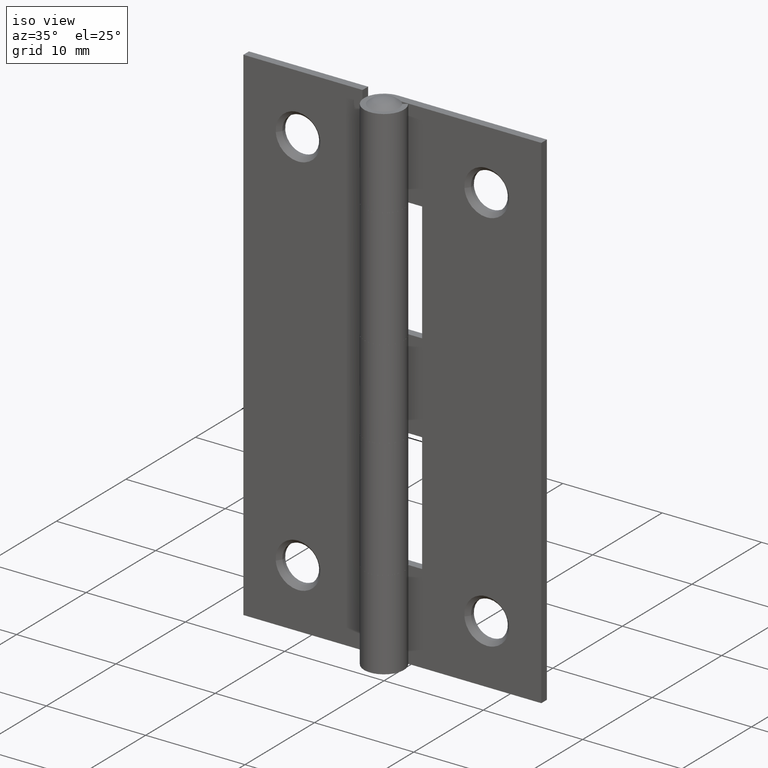
[diagram: clean part render]
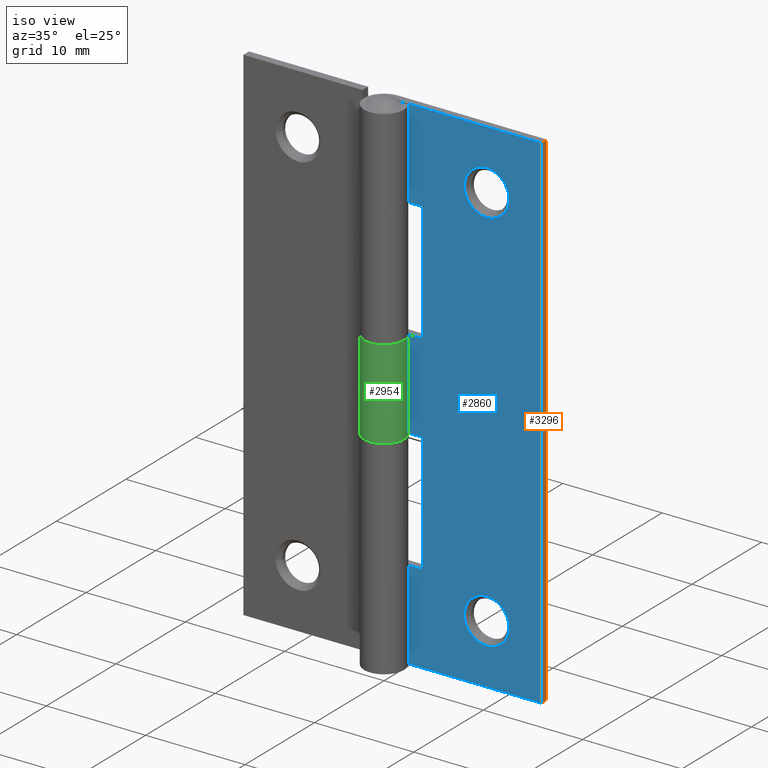
[diagram: same view with three faces highlighted in distinct colors, each labeled with its STEP entity id]
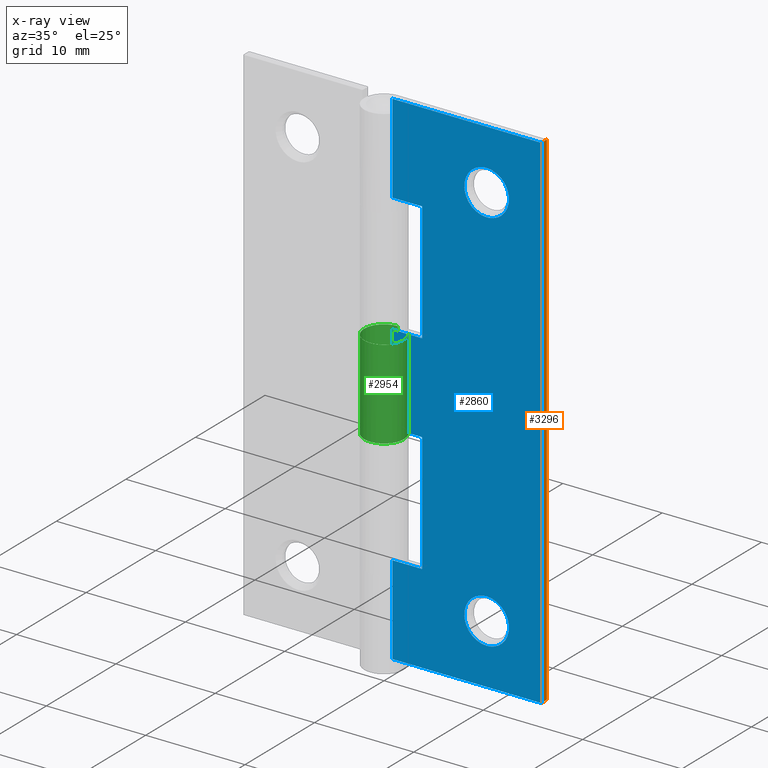
[diagram: x-ray of the same camera — body ghosted, the three highlighted faces saturated]
A machine part, iso view with three faces highlighted in distinct colors.
The next image is the same camera in x-ray (body ghosted, the three faces saturated) — at least one of them is partly hidden behind the body in this view.
Their STEP definitions:

[orange] entity #3296 — the highlighted face is a freeform B-spline surface patch.
#2827=CARTESIAN_POINT('',(14.999999999988461,1.200000000000000,-9.547918E-012));
#2828=VERTEX_POINT('',#2827);
#2834=CARTESIAN_POINT('',(14.999999999988461,1.200000000000000,50.999999999990401));
#2835=VERTEX_POINT('',#2834);
#2836=CARTESIAN_POINT('',(14.999999999988461,1.200000000000000,50.999999999990401));
#2837=CARTESIAN_POINT('',(14.999999999988461,1.200000000000000,-9.547918E-012));
#2838=QUASI_UNIFORM_CURVE('',1,(#2836,#2837),.UNSPECIFIED.,.F.,.U.);
#2839=EDGE_CURVE('',#2835,#2828,#2838,.T.);
#3196=CARTESIAN_POINT('',(14.999999999988461,1.999999999982665,-9.547918E-012));
#3197=VERTEX_POINT('',#3196);
#3203=CARTESIAN_POINT('',(14.999999999988461,1.999999999982665,-9.547918E-012));
#3204=CARTESIAN_POINT('',(14.999999999988461,1.200000000000000,-9.547918E-012));
#3205=QUASI_UNIFORM_CURVE('',1,(#3203,#3204),.UNSPECIFIED.,.F.,.U.);
#3206=EDGE_CURVE('',#3197,#2828,#3205,.T.);
#3266=CARTESIAN_POINT('',(14.999999999988461,1.999999999982665,50.999999999990401));
#3267=VERTEX_POINT('',#3266);
#3268=CARTESIAN_POINT('',(14.999999999988461,1.999999999982665,50.999999999990401));
#3269=CARTESIAN_POINT('',(14.999999999988461,1.200000000000000,50.999999999990401));
#3270=QUASI_UNIFORM_CURVE('',1,(#3268,#3269),.UNSPECIFIED.,.F.,.U.);
#3271=EDGE_CURVE('',#3267,#2835,#3270,.T.);
#3281=CARTESIAN_POINT('',(14.999999999988461,1.160040001551421,53.547449901142507));
#3282=CARTESIAN_POINT('',(14.999999999988461,1.160040001551421,-2.547451269088248));
#3283=CARTESIAN_POINT('',(14.999999999988461,2.039960019888916,53.547449901142507));
#3284=CARTESIAN_POINT('',(14.999999999988461,2.039960019888916,-2.547451269088248));
#3285=B_SPLINE_SURFACE_WITH_KNOTS('',1,1,((#3281,#3283),(#3282,#3284)),.UNSPECIFIED.,.F.,.F.,.U.,(2,2),(2,2),(0.0,56.094901170230763),(0.041708334948495,0.958291687403247),.UNSPECIFIED.);
#3286=ORIENTED_EDGE('',*,*,#3206,.F.);
#3287=CARTESIAN_POINT('',(14.999999999988461,1.999999999982665,50.999999999990401));
#3288=CARTESIAN_POINT('',(14.999999999988461,1.999999999982665,-9.547918E-012));
#3289=QUASI_UNIFORM_CURVE('',1,(#3287,#3288),.UNSPECIFIED.,.F.,.U.);
#3290=EDGE_CURVE('',#3267,#3197,#3289,.T.);
#3291=ORIENTED_EDGE('',*,*,#3290,.F.);
#3292=ORIENTED_EDGE('',*,*,#3271,.T.);
#3293=ORIENTED_EDGE('',*,*,#2839,.T.);
#3294=EDGE_LOOP('',(#3286,#3291,#3292,#3293));
#3295=FACE_OUTER_BOUND('',#3294,.T.);
#3296=ADVANCED_FACE('',(#3295),#3285,.T.);

[blue] entity #2860 — the highlighted face is a freeform B-spline surface patch.
#1819=CARTESIAN_POINT('',(11.743064000920100,1.199999999947881,45.176532965684039));
#1820=VERTEX_POINT('',#1819);
#1826=CARTESIAN_POINT('',(9.499999999988402,1.199999999999976,47.249999999904837));
#1827=VERTEX_POINT('',#1826);
#1828=CARTESIAN_POINT('',(9.499999999988402,1.199999999999976,47.249999999904837));
#1829=CARTESIAN_POINT('',(11.579878605885737,1.199999999973929,47.249999999906919));
#1830=CARTESIAN_POINT('',(11.743064000920102,1.199999999947882,45.176532965684039));
#1838=(BOUNDED_CURVE()B_SPLINE_CURVE(2,(#1828,#1829,#1830),.UNSPECIFIED.,.F.,.U.)B_SPLINE_CURVE_WITH_KNOTS((3,3),(0.0,0.236331300602339),.UNSPECIFIED.)CURVE()GEOMETRIC_REPRESENTATION_ITEM()RATIONAL_B_SPLINE_CURVE((1.0,0.723120658640845,0.969723356108315))REPRESENTATION_ITEM(''));
#1839=EDGE_CURVE('',#1827,#1820,#1838,.T.);
#1841=CARTESIAN_POINT('',(7.256935999056699,1.199999999947881,44.823467034102457));
#1842=VERTEX_POINT('',#1841);
#1843=CARTESIAN_POINT('',(7.256935999056699,1.199999999947881,44.823467034102464));
#1844=CARTESIAN_POINT('',(7.249999999925810,1.199999999948828,44.911597258921532));
#1845=CARTESIAN_POINT('',(7.249999999926830,1.199999999949851,44.999999999889312));
#1846=CARTESIAN_POINT('',(7.249999999952800,1.199999999975898,47.249999999902961));
#1847=CARTESIAN_POINT('',(9.499999999988402,1.199999999999976,47.249999999904837));
#1855=(BOUNDED_CURVE()B_SPLINE_CURVE(2,(#1843,#1844,#1845,#1846,#1847),.UNSPECIFIED.,.F.,.U.)B_SPLINE_CURVE_WITH_KNOTS((3,2,3),(0.736331300602339,0.750000000000000,1.0),.UNSPECIFIED.)CURVE()GEOMETRIC_REPRESENTATION_ITEM()RATIONAL_B_SPLINE_CURVE((0.969723356108315,0.983986122545702,1.0,0.707106781186547,1.0))REPRESENTATION_ITEM(''));
#1856=EDGE_CURVE('',#1842,#1827,#1855,.T.);
#1962=CARTESIAN_POINT('',(9.499999999988402,1.199999999999976,42.749999999881652));
#1963=VERTEX_POINT('',#1962);
#1964=CARTESIAN_POINT('',(9.499999999988402,1.199999999999976,42.749999999881652));
#1965=CARTESIAN_POINT('',(7.420121394091065,1.199999999973928,42.749999999879606));
#1966=CARTESIAN_POINT('',(7.256935999056699,1.199999999947881,44.823467034102464));
#1974=(BOUNDED_CURVE()B_SPLINE_CURVE(2,(#1964,#1965,#1966),.UNSPECIFIED.,.F.,.U.)B_SPLINE_CURVE_WITH_KNOTS((3,3),(0.500000000000000,0.736331300602339),.UNSPECIFIED.)CURVE()GEOMETRIC_REPRESENTATION_ITEM()RATIONAL_B_SPLINE_CURVE((1.0,0.723120658640845,0.969723356108315))REPRESENTATION_ITEM(''));
#1975=EDGE_CURVE('',#1963,#1842,#1974,.T.);
#1977=CARTESIAN_POINT('',(11.743064000920103,1.199999999947882,45.176532965684039));
#1978=CARTESIAN_POINT('',(11.750000000050987,1.199999999948827,45.088402740864971));
#1979=CARTESIAN_POINT('',(11.750000000049971,1.199999999949851,44.999999999897177));
#1980=CARTESIAN_POINT('',(11.750000000024002,1.199999999975898,42.749999999883549));
#1981=CARTESIAN_POINT('',(9.499999999988402,1.199999999999976,42.749999999881652));
#1989=(BOUNDED_CURVE()B_SPLINE_CURVE(2,(#1977,#1978,#1979,#1980,#1981),.UNSPECIFIED.,.F.,.U.)B_SPLINE_CURVE_WITH_KNOTS((3,2,3),(0.236331300602340,0.250000000000000,0.500000000000000),.UNSPECIFIED.)CURVE()GEOMETRIC_REPRESENTATION_ITEM()RATIONAL_B_SPLINE_CURVE((0.969723356108316,0.983986122545703,1.0,0.707106781186547,1.0))REPRESENTATION_ITEM(''));
#1990=EDGE_CURVE('',#1820,#1963,#1989,.T.);
#2155=CARTESIAN_POINT('',(11.743064000920100,1.199999999947882,6.176532965684070));
#2156=VERTEX_POINT('',#2155);
#2162=CARTESIAN_POINT('',(9.499999999988402,1.199999999999976,8.249999999904874));
#2163=VERTEX_POINT('',#2162);
#2164=CARTESIAN_POINT('',(9.499999999988402,1.199999999999976,8.249999999904874));
#2165=CARTESIAN_POINT('',(11.579878605885739,1.199999999973929,8.249999999906917));
#2166=CARTESIAN_POINT('',(11.743064000920109,1.199999999947881,6.176532965684070));
#2174=(BOUNDED_CURVE()B_SPLINE_CURVE(2,(#2164,#2165,#2166),.UNSPECIFIED.,.F.,.U.)B_SPLINE_CURVE_WITH_KNOTS((3,3),(0.0,0.236331300602339),.UNSPECIFIED.)CURVE()GEOMETRIC_REPRESENTATION_ITEM()RATIONAL_B_SPLINE_CURVE((1.0,0.723120658640845,0.969723356108315))REPRESENTATION_ITEM(''));
#2175=EDGE_CURVE('',#2163,#2156,#2174,.T.);
#2177=CARTESIAN_POINT('',(7.256935999056699,1.199999999947881,5.823467034102490));
#2178=VERTEX_POINT('',#2177);
#2179=CARTESIAN_POINT('',(7.256935999056699,1.199999999947882,5.823467034102490));
#2180=CARTESIAN_POINT('',(7.249999999925810,1.199999999948828,5.911597258921560));
#2181=CARTESIAN_POINT('',(7.249999999926831,1.199999999949851,5.999999999889346));
#2182=CARTESIAN_POINT('',(7.249999999952800,1.199999999975898,8.249999999902986));
#2183=CARTESIAN_POINT('',(9.499999999988402,1.199999999999976,8.249999999904874));
#2191=(BOUNDED_CURVE()B_SPLINE_CURVE(2,(#2179,#2180,#2181,#2182,#2183),.UNSPECIFIED.,.F.,.U.)B_SPLINE_CURVE_WITH_KNOTS((3,2,3),(0.736331300602339,0.750000000000000,1.0),.UNSPECIFIED.)CURVE()GEOMETRIC_REPRESENTATION_ITEM()RATIONAL_B_SPLINE_CURVE((0.969723356108315,0.983986122545703,1.0,0.707106781186547,1.0))REPRESENTATION_ITEM(''));
#2192=EDGE_CURVE('',#2178,#2163,#2191,.T.);
#2298=CARTESIAN_POINT('',(9.499999999988402,1.199999999999976,3.749999999881685));
#2299=VERTEX_POINT('',#2298);
#2300=CARTESIAN_POINT('',(9.499999999988402,1.199999999999976,3.749999999881685));
#2301=CARTESIAN_POINT('',(7.420121394091066,1.199999999973929,3.749999999879642));
#2302=CARTESIAN_POINT('',(7.256935999056699,1.199999999947882,5.823467034102490));
#2310=(BOUNDED_CURVE()B_SPLINE_CURVE(2,(#2300,#2301,#2302),.UNSPECIFIED.,.F.,.U.)B_SPLINE_CURVE_WITH_KNOTS((3,3),(0.500000000000000,0.736331300602339),.UNSPECIFIED.)CURVE()GEOMETRIC_REPRESENTATION_ITEM()RATIONAL_B_SPLINE_CURVE((1.0,0.723120658640845,0.969723356108315))REPRESENTATION_ITEM(''));
#2311=EDGE_CURVE('',#2299,#2178,#2310,.T.);
#2313=CARTESIAN_POINT('',(11.743064000920109,1.199999999947881,6.176532965684070));
#2314=CARTESIAN_POINT('',(11.750000000050992,1.199999999948827,6.088402740865000));
#2315=CARTESIAN_POINT('',(11.750000000049971,1.199999999949851,5.999999999897213));
#2316=CARTESIAN_POINT('',(11.750000000024002,1.199999999975898,3.749999999883575));
#2317=CARTESIAN_POINT('',(9.499999999988402,1.199999999999976,3.749999999881685));
#2325=(BOUNDED_CURVE()B_SPLINE_CURVE(2,(#2313,#2314,#2315,#2316,#2317),.UNSPECIFIED.,.F.,.U.)B_SPLINE_CURVE_WITH_KNOTS((3,2,3),(0.236331300602339,0.250000000000000,0.500000000000000),.UNSPECIFIED.)CURVE()GEOMETRIC_REPRESENTATION_ITEM()RATIONAL_B_SPLINE_CURVE((0.969723356108315,0.983986122545703,1.0,0.707106781186547,1.0))REPRESENTATION_ITEM(''));
#2326=EDGE_CURVE('',#2156,#2299,#2325,.T.);
#2480=CARTESIAN_POINT('',(-1.159961E-011,1.200000000000000,9.000000000000119));
#2481=VERTEX_POINT('',#2480);
#2518=CARTESIAN_POINT('',(-1.159961E-011,1.199999999999928,-9.547918E-012));
#2519=VERTEX_POINT('',#2518);
#2547=CARTESIAN_POINT('',(-1.159961E-011,1.200000000000000,9.000000000000119));
#2548=CARTESIAN_POINT('',(-1.159961E-011,1.199999999999928,-9.547918E-012));
#2549=QUASI_UNIFORM_CURVE('',1,(#2547,#2548),.UNSPECIFIED.,.F.,.U.);
#2550=EDGE_CURVE('',#2481,#2519,#2549,.T.);
#2613=CARTESIAN_POINT('',(-1.159961E-011,1.200000000000000,30.0));
#2614=VERTEX_POINT('',#2613);
#2644=CARTESIAN_POINT('',(-1.159961E-011,1.200000000000000,21.0));
#2645=VERTEX_POINT('',#2644);
#2675=CARTESIAN_POINT('',(-1.159961E-011,1.200000000000000,30.0));
#2676=CARTESIAN_POINT('',(-1.159961E-011,1.200000000000000,21.0));
#2677=QUASI_UNIFORM_CURVE('',1,(#2675,#2676),.UNSPECIFIED.,.F.,.U.);
#2678=EDGE_CURVE('',#2614,#2645,#2677,.T.);
#2705=CARTESIAN_POINT('',(-1.159961E-011,1.200000000000000,42.0));
#2706=VERTEX_POINT('',#2705);
#2736=CARTESIAN_POINT('',(-1.159961E-011,1.199999999999928,50.999999999990401));
#2737=VERTEX_POINT('',#2736);
#2738=CARTESIAN_POINT('',(-1.159961E-011,1.199999999999928,50.999999999990401));
#2739=CARTESIAN_POINT('',(-1.159961E-011,1.200000000000000,42.0));
#2740=QUASI_UNIFORM_CURVE('',1,(#2738,#2739),.UNSPECIFIED.,.F.,.U.);
#2741=EDGE_CURVE('',#2737,#2706,#2740,.T.);
#2781=CARTESIAN_POINT('',(-0.749249970938691,1.200000000000000,-2.547449901161651));
#2782=CARTESIAN_POINT('',(15.749250373246911,1.200000000000000,-2.547449901161651));
#2783=CARTESIAN_POINT('',(-0.749249970938691,1.200000000000000,53.547451269069100));
#2784=CARTESIAN_POINT('',(15.749250373246911,1.200000000000000,53.547451269069100));
#2785=B_SPLINE_SURFACE_WITH_KNOTS('',1,1,((#2781,#2783),(#2782,#2784)),.UNSPECIFIED.,.F.,.F.,.U.,(2,2),(2,2),(0.0,16.498500344185601),(0.0,56.094901170230749),.UNSPECIFIED.);
#2786=ORIENTED_EDGE('',*,*,#2741,.T.);
#2787=CARTESIAN_POINT('',(3.000000000000055,1.199999999999980,41.999999999998103));
#2788=VERTEX_POINT('',#2787);
#2789=CARTESIAN_POINT('',(-1.159961E-011,1.200000000000000,42.0));
#2790=CARTESIAN_POINT('',(3.000000000000055,1.199999999999980,41.999999999998103));
#2791=QUASI_UNIFORM_CURVE('',1,(#2789,#2790),.UNSPECIFIED.,.F.,.U.);
#2792=EDGE_CURVE('',#2706,#2788,#2791,.T.);
#2793=ORIENTED_EDGE('',*,*,#2792,.T.);
#2794=CARTESIAN_POINT('',(3.000000000000055,1.199999999999980,29.999999999998149));
#2795=VERTEX_POINT('',#2794);
#2796=CARTESIAN_POINT('',(3.000000000000055,1.199999999999980,41.999999999998103));
#2797=CARTESIAN_POINT('',(3.000000000000055,1.199999999999980,29.999999999998149));
#2798=QUASI_UNIFORM_CURVE('',1,(#2796,#2797),.UNSPECIFIED.,.F.,.U.);
#2799=EDGE_CURVE('',#2788,#2795,#2798,.T.);
#2800=ORIENTED_EDGE('',*,*,#2799,.T.);
#2801=CARTESIAN_POINT('',(3.000000000000055,1.199999999999980,29.999999999998149));
#2802=CARTESIAN_POINT('',(-1.159961E-011,1.200000000000000,30.0));
#2803=QUASI_UNIFORM_CURVE('',1,(#2801,#2802),.UNSPECIFIED.,.F.,.U.);
#2804=EDGE_CURVE('',#2795,#2614,#2803,.T.);
#2805=ORIENTED_EDGE('',*,*,#2804,.T.);
#2806=ORIENTED_EDGE('',*,*,#2678,.T.);
#2807=CARTESIAN_POINT('',(3.0,1.199999999999980,20.999999999998149));
#2808=VERTEX_POINT('',#2807);
#2809=CARTESIAN_POINT('',(-1.159961E-011,1.200000000000000,21.0));
#2810=CARTESIAN_POINT('',(3.0,1.199999999999980,20.999999999998149));
#2811=QUASI_UNIFORM_CURVE('',1,(#2809,#2810),.UNSPECIFIED.,.F.,.U.);
#2812=EDGE_CURVE('',#2645,#2808,#2811,.T.);
#2813=ORIENTED_EDGE('',*,*,#2812,.T.);
#2814=CARTESIAN_POINT('',(3.0,1.199999999999980,8.999999999998121));
#2815=VERTEX_POINT('',#2814);
#2816=CARTESIAN_POINT('',(3.0,1.199999999999980,20.999999999998149));
#2817=CARTESIAN_POINT('',(3.0,1.199999999999980,8.999999999998121));
#2818=QUASI_UNIFORM_CURVE('',1,(#2816,#2817),.UNSPECIFIED.,.F.,.U.);
#2819=EDGE_CURVE('',#2808,#2815,#2818,.T.);
#2820=ORIENTED_EDGE('',*,*,#2819,.T.);
#2821=CARTESIAN_POINT('',(3.0,1.199999999999980,8.999999999998121));
#2822=CARTESIAN_POINT('',(-1.159961E-011,1.200000000000000,9.000000000000119));
#2823=QUASI_UNIFORM_CURVE('',1,(#2821,#2822),.UNSPECIFIED.,.F.,.U.);
#2824=EDGE_CURVE('',#2815,#2481,#2823,.T.);
#2825=ORIENTED_EDGE('',*,*,#2824,.T.);
#2826=ORIENTED_EDGE('',*,*,#2550,.T.);
#2827=CARTESIAN_POINT('',(14.999999999988461,1.200000000000000,-9.547918E-012));
#2828=VERTEX_POINT('',#2827);
#2829=CARTESIAN_POINT('',(14.999999999988461,1.200000000000000,-9.547918E-012));
#2830=CARTESIAN_POINT('',(-1.159961E-011,1.199999999999928,-9.547918E-012));
#2831=QUASI_UNIFORM_CURVE('',1,(#2829,#2830),.UNSPECIFIED.,.F.,.U.);
#2832=EDGE_CURVE('',#2828,#2519,#2831,.T.);
#2833=ORIENTED_EDGE('',*,*,#2832,.F.);
#2834=CARTESIAN_POINT('',(14.999999999988461,1.200000000000000,50.999999999990401));
#2835=VERTEX_POINT('',#2834);
#2836=CARTESIAN_POINT('',(14.999999999988461,1.200000000000000,50.999999999990401));
#2837=CARTESIAN_POINT('',(14.999999999988461,1.200000000000000,-9.547918E-012));
#2838=QUASI_UNIFORM_CURVE('',1,(#2836,#2837),.UNSPECIFIED.,.F.,.U.);
#2839=EDGE_CURVE('',#2835,#2828,#2838,.T.);
#2840=ORIENTED_EDGE('',*,*,#2839,.F.);
#2841=CARTESIAN_POINT('',(14.999999999988461,1.200000000000000,50.999999999990401));
#2842=CARTESIAN_POINT('',(-1.159961E-011,1.199999999999928,50.999999999990401));
#2843=QUASI_UNIFORM_CURVE('',1,(#2841,#2842),.UNSPECIFIED.,.F.,.U.);
#2844=EDGE_CURVE('',#2835,#2737,#2843,.T.);
#2845=ORIENTED_EDGE('',*,*,#2844,.T.);
#2846=EDGE_LOOP('',(#2786,#2793,#2800,#2805,#2806,#2813,#2820,#2825,#2826,#2833,#2840,#2845));
#2847=FACE_OUTER_BOUND('',#2846,.T.);
#2848=ORIENTED_EDGE('',*,*,#2311,.T.);
#2849=ORIENTED_EDGE('',*,*,#2192,.T.);
#2850=ORIENTED_EDGE('',*,*,#2175,.T.);
#2851=ORIENTED_EDGE('',*,*,#2326,.T.);
#2852=EDGE_LOOP('',(#2848,#2849,#2850,#2851));
#2853=FACE_BOUND('',#2852,.T.);
#2854=ORIENTED_EDGE('',*,*,#1975,.T.);
#2855=ORIENTED_EDGE('',*,*,#1856,.T.);
#2856=ORIENTED_EDGE('',*,*,#1839,.T.);
#2857=ORIENTED_EDGE('',*,*,#1990,.T.);
#2858=EDGE_LOOP('',(#2854,#2855,#2856,#2857));
#2859=FACE_BOUND('',#2858,.T.);
#2860=ADVANCED_FACE('',(#2847,#2853,#2859),#2785,.T.);

[green] entity #2954 — the highlighted face is a freeform B-spline surface patch.
#2569=CARTESIAN_POINT('',(1.636306817183805,1.149999999999934,29.999999999999250));
#2570=VERTEX_POINT('',#2569);
#2576=CARTESIAN_POINT('',(1.636306817183805,1.149999999999934,20.999999999999051));
#2577=VERTEX_POINT('',#2576);
#2578=CARTESIAN_POINT('',(1.636306817183805,1.149999999999934,29.999999999999250));
#2579=CARTESIAN_POINT('',(1.636306817183805,1.149999999999934,20.999999999999051));
#2580=QUASI_UNIFORM_CURVE('',1,(#2578,#2579),.UNSPECIFIED.,.F.,.U.);
#2581=EDGE_CURVE('',#2570,#2577,#2580,.T.);
#2861=CARTESIAN_POINT('',(0.083764134986120,1.998245122523281,30.225000000001351));
#2862=CARTESIAN_POINT('',(0.083764134986120,1.998245122523281,20.769374999998650));
#2863=CARTESIAN_POINT('',(-2.473872988658187,2.105458326191498,30.225000000001359));
#2864=CARTESIAN_POINT('',(-2.473872988658187,2.105458326191498,20.769374999998661));
#2865=CARTESIAN_POINT('',(-1.959153080769704,-0.402143265710133,30.225000000001351));
#2866=CARTESIAN_POINT('',(-1.959153080769704,-0.402143265710133,20.769374999998650));
#2867=CARTESIAN_POINT('',(-1.444433172881222,-2.909744857611765,30.225000000001359));
#2868=CARTESIAN_POINT('',(-1.444433172881222,-2.909744857611765,20.769374999998661));
#2869=CARTESIAN_POINT('',(0.864159919124549,-1.803670600236808,30.225000000001351));
#2870=CARTESIAN_POINT('',(0.864159919124549,-1.803670600236808,20.769374999998650));
#2871=CARTESIAN_POINT('',(3.172753011130319,-0.697596342861852,30.225000000001359));
#2872=CARTESIAN_POINT('',(3.172753011130319,-0.697596342861852,20.769374999998661));
#2873=CARTESIAN_POINT('',(1.541034669269169,1.274838087003491,30.225000000001351));
#2874=CARTESIAN_POINT('',(1.541034669269169,1.274838087003491,20.769374999998650));
#2882=(BOUNDED_SURFACE()B_SPLINE_SURFACE(1,2,((#2861,#2863,#2865,#2867,#2869,#2871,#2873),(#2862,#2864,#2866,#2868,#2870,#2872,#2874)),.UNSPECIFIED.,.F.,.F.,.U.)B_SPLINE_SURFACE_WITH_KNOTS((2,2),(3,2,2,3),(0.0,9.455625000002698),(0.0,3.901860708526890,7.803721417053780,11.705582125580669),.UNSPECIFIED.)GEOMETRIC_REPRESENTATION_ITEM()RATIONAL_B_SPLINE_SURFACE(((1.0,0.615661475325658,1.0,0.615661475325658,1.0,0.615661475325658,1.0),(1.0,0.615661475325658,1.0,0.615661475325658,1.0,0.615661475325658,1.0)))REPRESENTATION_ITEM('')SURFACE());
#2883=ORIENTED_EDGE('',*,*,#2581,.F.);
#2884=CARTESIAN_POINT('',(-9.285107E-012,1.999999999982680,30.0));
#2885=VERTEX_POINT('',#2884);
#2886=CARTESIAN_POINT('',(1.636306817183805,1.149999999999934,29.999999999999250));
#2887=CARTESIAN_POINT('',(1.748018753799967,0.991210770198378,29.999999999999169));
#2888=CARTESIAN_POINT('',(1.880371766056022,0.728366814812891,29.999999999998970));
#2889=CARTESIAN_POINT('',(1.982996333552182,0.324062484740004,29.999999999998899));
#2890=CARTESIAN_POINT('',(2.008149580759585,0.018678580379149,29.999999999998799));
#2891=CARTESIAN_POINT('',(1.983548330178279,-0.313880682151046,29.999999999998760));
#2892=CARTESIAN_POINT('',(1.891604776167489,-0.707222285836876,29.999999999998831));
#2893=CARTESIAN_POINT('',(1.695208867624239,-1.094708052409070,29.999999999998881));
#2894=CARTESIAN_POINT('',(1.373316651020546,-1.478586238571629,29.999999999999130));
#2895=CARTESIAN_POINT('',(0.992318171554958,-1.764726569026287,29.999999999999378));
#2896=CARTESIAN_POINT('',(0.549921538150216,-1.938158561437202,29.999999999999631));
#2897=CARTESIAN_POINT('',(0.096989310326189,-2.013926589607609,29.999999999999961));
#2898=CARTESIAN_POINT('',(-0.350209943599402,-1.990379513752049,30.000000000000210));
#2899=CARTESIAN_POINT('',(-0.776595352115105,-1.857338185551025,30.000000000000501));
#2900=CARTESIAN_POINT('',(-1.130739964359566,-1.663907499167095,30.000000000000671));
#2901=CARTESIAN_POINT('',(-1.475710466626468,-1.380968722644232,30.000000000001240));
#2902=CARTESIAN_POINT('',(-1.774619165216766,-0.974514836551452,30.000000000000590));
#2903=CARTESIAN_POINT('',(-1.973474077869195,-0.452017969937352,30.000000000001361));
#2904=CARTESIAN_POINT('',(-2.023085777441112,0.078219691858640,30.000000000003450));
#2905=CARTESIAN_POINT('',(-1.934358754796476,0.573448176830854,30.000000000000401));
#2906=CARTESIAN_POINT('',(-1.736186293429792,1.034605243397259,30.000000000001432));
#2907=CARTESIAN_POINT('',(-1.445724292067975,1.412315108193620,30.000000000000838));
#2908=CARTESIAN_POINT('',(-1.039936718112783,1.730911645171357,30.000000000000799));
#2909=CARTESIAN_POINT('',(-0.568509109263260,1.945051417397854,29.999999999999389));
#2910=CARTESIAN_POINT('',(-0.194142614183941,2.000084957047820,30.000000000002530));
#2911=CARTESIAN_POINT('',(-9.285107E-012,1.999999999982680,30.0));
#2912=B_SPLINE_CURVE_WITH_KNOTS('',3,(#2886,#2887,#2888,#2889,#2890,#2891,#2892,#2893,#2894,#2895,#2896,#2897,#2898,#2899,#2900,#2901,#2902,#2903,#2904,#2905,#2906,#2907,#2908,#2909,#2910,#2911),.UNSPECIFIED.,.F.,.U.,(4,1,1,1,1,1,1,1,1,1,1,1,1,1,1,1,1,1,1,1,1,1,1,4),(0.000000201464694,0.582416088572948,0.873635155163393,1.248067233233146,1.497682879284920,1.872116587352071,2.454557791248856,2.787336594343878,3.369773954612445,3.869009265797927,4.201835316411153,4.742679100294008,5.200304102769586,5.533076856444231,5.949103628243475,6.531553786660095,7.030791814882169,7.613239124557540,8.112421365871573,8.528441217914077,9.110891183924323,9.526921123901209,10.067767841611129,10.650178224112340),.UNSPECIFIED.);
#2913=EDGE_CURVE('',#2570,#2885,#2912,.T.);
#2914=ORIENTED_EDGE('',*,*,#2913,.T.);
#2915=CARTESIAN_POINT('',(-9.285017E-012,1.999999999982665,21.0));
#2916=VERTEX_POINT('',#2915);
#2917=CARTESIAN_POINT('',(-9.285107E-012,1.999999999982680,30.0));
#2918=CARTESIAN_POINT('',(-9.285017E-012,1.999999999982665,21.0));
#2919=QUASI_UNIFORM_CURVE('',1,(#2917,#2918),.UNSPECIFIED.,.F.,.U.);
#2920=EDGE_CURVE('',#2885,#2916,#2919,.T.);
#2921=ORIENTED_EDGE('',*,*,#2920,.T.);
#2922=CARTESIAN_POINT('',(-9.285017E-012,1.999999999982665,21.0));
#2923=CARTESIAN_POINT('',(-0.194146006474100,2.000085170623780,21.000000000000099));
#2924=CARTESIAN_POINT('',(-0.568502000393880,1.945047211119069,21.000000000000419));
#2925=CARTESIAN_POINT('',(-1.078192899209407,1.713574005027860,21.000000000000679));
#2926=CARTESIAN_POINT('',(-1.475265083594820,1.381217381386643,21.000000000000949));
#2927=CARTESIAN_POINT('',(-1.720027087198972,1.041441249861211,21.000000000001101));
#2928=CARTESIAN_POINT('',(-1.894409253211614,0.678198490953121,21.000000000001410));
#2929=CARTESIAN_POINT('',(-1.995138829557330,0.300095950488991,21.000000000001059));
#2930=CARTESIAN_POINT('',(-2.010078477730977,-0.173709460913514,21.000000000001499));
#2931=CARTESIAN_POINT('',(-1.914261723077451,-0.653388062424072,21.000000000000991));
#2932=CARTESIAN_POINT('',(-1.710342912244104,-1.067758373495872,21.000000000001190));
#2933=CARTESIAN_POINT('',(-1.466597018513890,-1.371745838123831,21.000000000000959));
#2934=CARTESIAN_POINT('',(-1.230253699325944,-1.587165871706420,21.000000000000711));
#2935=CARTESIAN_POINT('',(-0.916647076945110,-1.794051478532836,21.000000000000998));
#2936=CARTESIAN_POINT('',(-0.474546796691630,-1.968208132458868,21.0));
#2937=CARTESIAN_POINT('',(0.027217610868280,-2.020891036411564,21.000000000000750));
#2938=CARTESIAN_POINT('',(0.496309243469872,-1.952382560355783,20.999999999998622));
#2939=CARTESIAN_POINT('',(0.888802079970989,-1.807799537104557,20.999999999997979));
#2940=CARTESIAN_POINT('',(1.242978004107145,-1.585289951071504,21.000000000005151));
#2941=CARTESIAN_POINT('',(1.543552277964745,-1.294438656106191,20.999999999995168));
#2942=CARTESIAN_POINT('',(1.761975876990072,-0.970894249967684,21.000000000000519));
#2943=CARTESIAN_POINT('',(1.916079160193700,-0.613035552180247,20.999999999998511));
#2944=CARTESIAN_POINT('',(2.010226825506584,-0.191176569478351,20.999999999998732));
#2945=CARTESIAN_POINT('',(2.001623039433933,0.242562120164796,20.999999999998789));
#2946=CARTESIAN_POINT('',(1.886675472084226,0.715852993393003,20.999999999998590));
#2947=CARTESIAN_POINT('',(1.748015342226534,0.991211021673069,20.999999999999211));
#2948=CARTESIAN_POINT('',(1.636306817183805,1.149999999999934,20.999999999999051));
#2949=B_SPLINE_CURVE_WITH_KNOTS('',3,(#2922,#2923,#2924,#2925,#2926,#2927,#2928,#2929,#2930,#2931,#2932,#2933,#2934,#2935,#2936,#2937,#2938,#2939,#2940,#2941,#2942,#2943,#2944,#2945,#2946,#2947,#2948),.UNSPECIFIED.,.F.,.U.,(4,1,1,1,1,1,1,1,1,1,1,1,1,1,1,1,1,1,1,1,1,1,1,1,4),(0.000000201459969,0.582416088568056,1.123256379147966,1.664097032048089,2.121737957971529,2.371354828215472,2.870536853026299,3.286565640541063,3.785804395879961,4.326645974440000,4.659472596926711,4.950695335362064,5.283497120570581,5.782690773648655,6.365139739233073,6.781170240470702,7.197206596818679,7.613239124551040,8.029227655597614,8.445234914001309,8.778061570648758,9.194097927015744,9.734939717545325,10.067767841603811,10.650178224105000),.UNSPECIFIED.);
#2950=EDGE_CURVE('',#2916,#2577,#2949,.T.);
#2951=ORIENTED_EDGE('',*,*,#2950,.T.);
#2952=EDGE_LOOP('',(#2883,#2914,#2921,#2951));
#2953=FACE_OUTER_BOUND('',#2952,.T.);
#2954=ADVANCED_FACE('',(#2953),#2882,.T.);